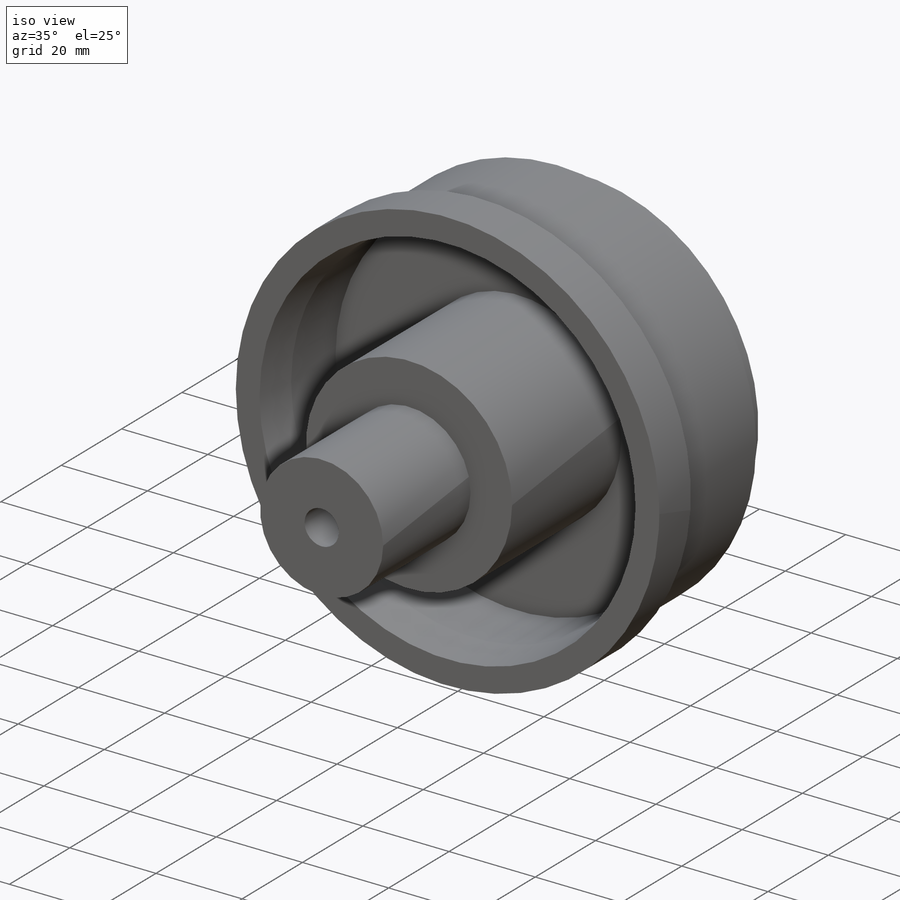
[diagram: iso view]
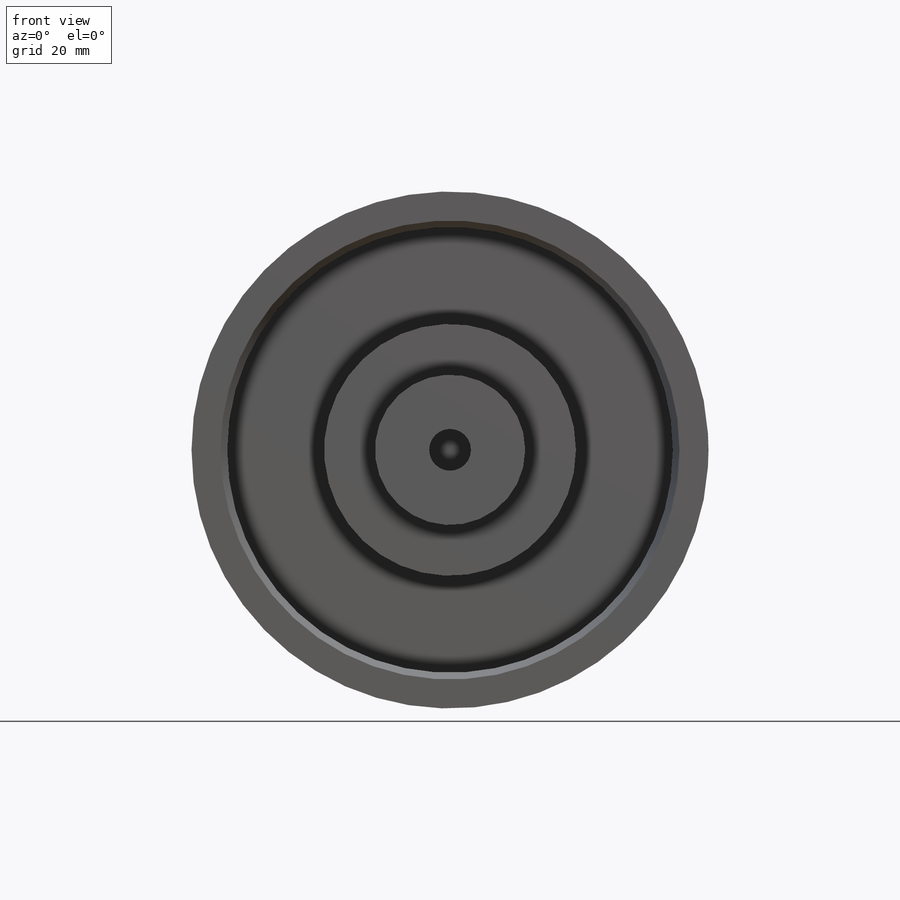
[diagram: front view]
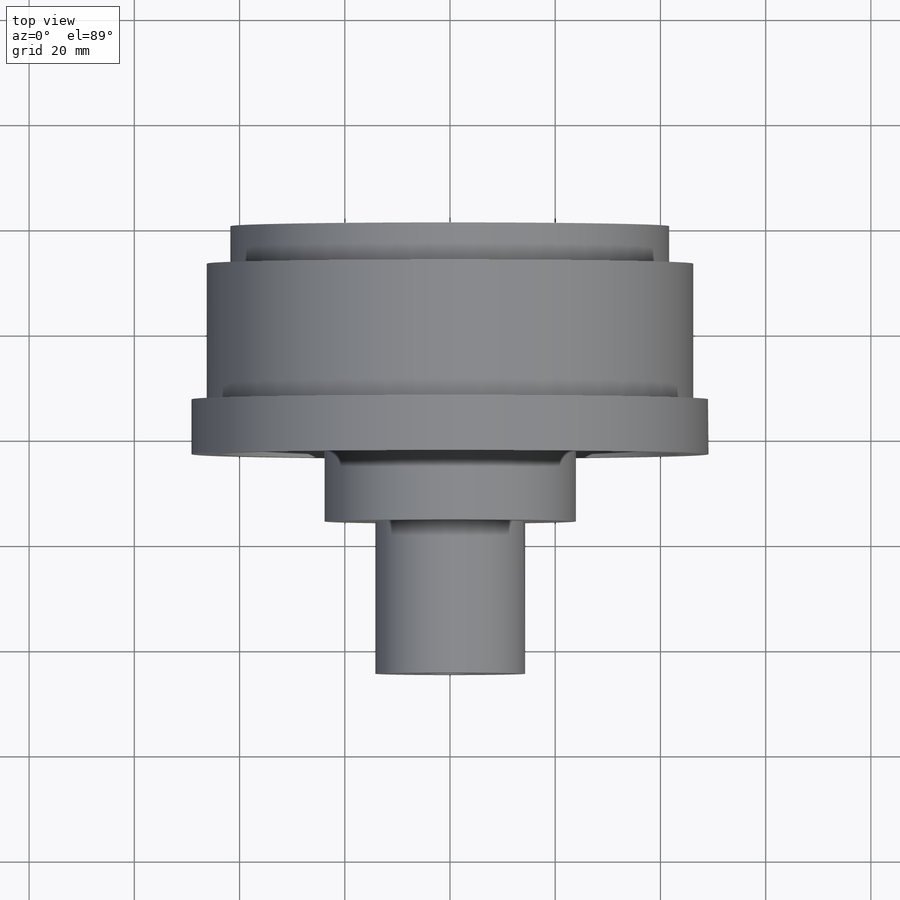
[diagram: top view]
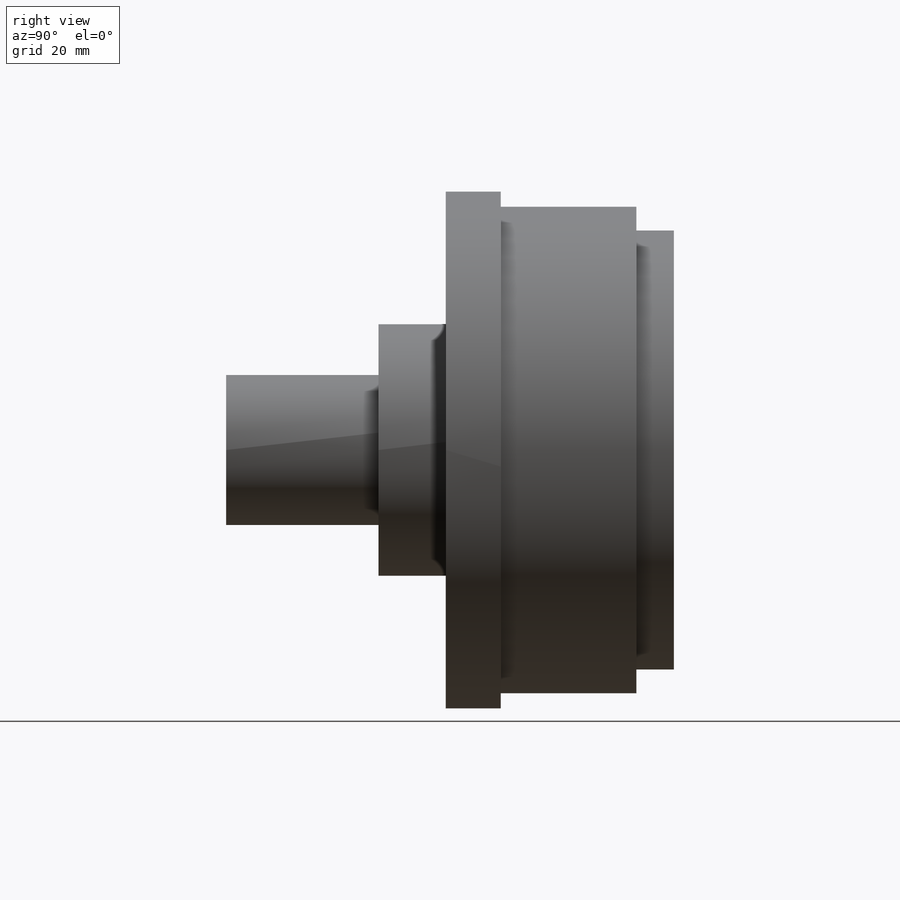
[diagram: right view]
SOLIDWORKS PART (.sldprt)
format: sldprt  version: not decoded by parser v0  size: 248,320 bytes
history: native  units: mm
features: sketch x8, cut_extrude x7, material x1, extrude x1, chamfer x1 (+12 scaffold rows collapsed)
feature tree (30):
  scaffold x12  (default folders/planes/origin — collapsed)
  material  "Material <not specified>"
  sketch  "Sketch1"  dims[D1=98.2726mm]
  extrude  "Extrude1"  Depth=85.09mm
  sketch  "Sketch5"  dims[D1=~16.094561mm]
  cut_extrude  "Extrude5"  Depth=26.67mm
  sketch  "Sketch2"  dims[D1=28.575mm]
  cut_extrude  "Extrude2"  Depth=28.956mm
  sketch  "Sketch3"  dims[D1=47.8536mm]
  cut_extrude  "Extrude3"  Depth=12.7762mm
  sketch  "Sketch4"  dims[D1=22.6695mm]
  cut_extrude  "Extrude4"  Depth=32.9057mm
  sketch  "Sketch6"  dims[D1=47.8536mm D2=84.709mm]
  cut_extrude  "Extrude8"  Depth=23.368mm
  sketch  "Sketch7"  dims[D1=38.354mm]
  cut_extrude  "Extrude9"  Depth=50.8mm
  sketch  "Sketch8"  dims[D1=83.5152mm]
  cut_extrude  "Extrude10"  Depth=7.112mm
  chamfer  "Chamfer1"  Distance=1.27mm
decode coverage: 17 of 17 modeling features carry decoded parameters
note: ~ marks probable driven/reference dimensions
note: suppression state not decoded; provenance and decode notes live in map.json
